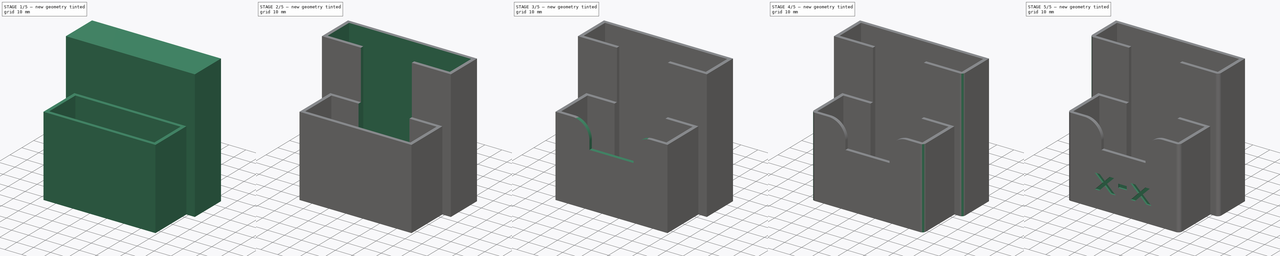
[diagram: build sequence overview — one tinted view per stage of 5, left to right]
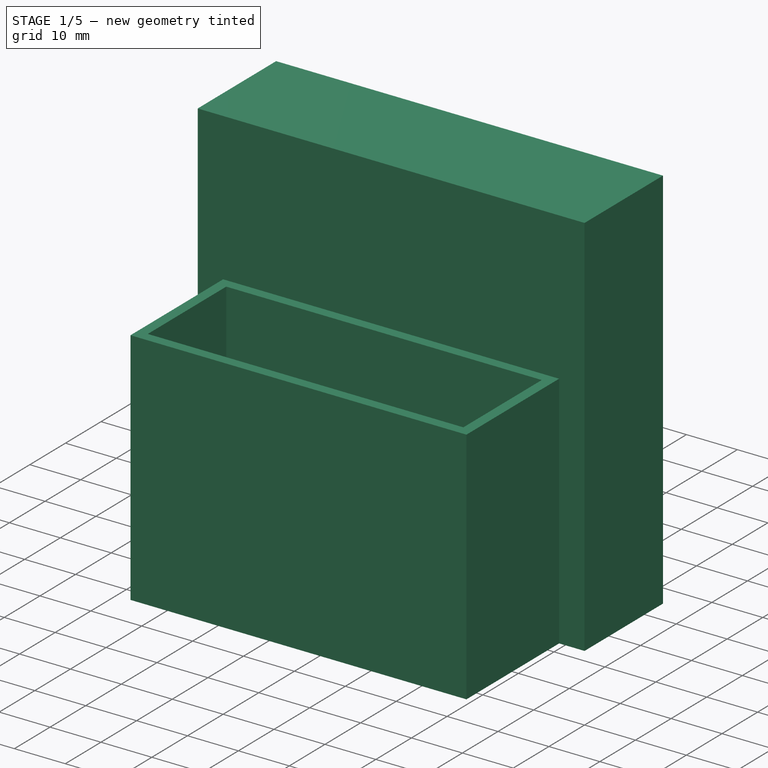
[diagram: stage 1 of 5 — iso view after this stage's code; geometry added in this stage tinted green]
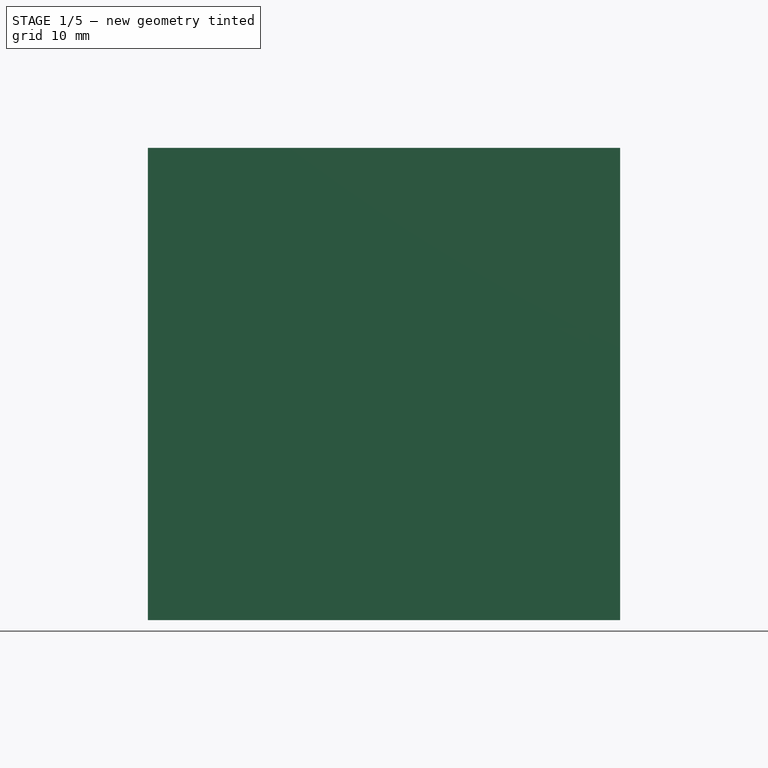
[diagram: stage 1 of 5 — front view after this stage's code; geometry added in this stage tinted green]
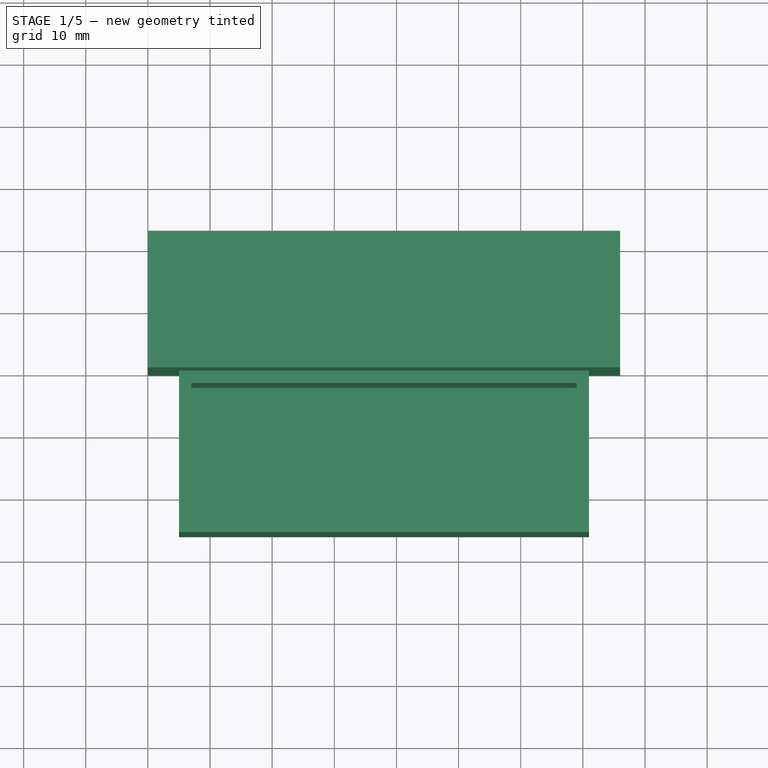
[diagram: stage 1 of 5 — top view after this stage's code; geometry added in this stage tinted green]
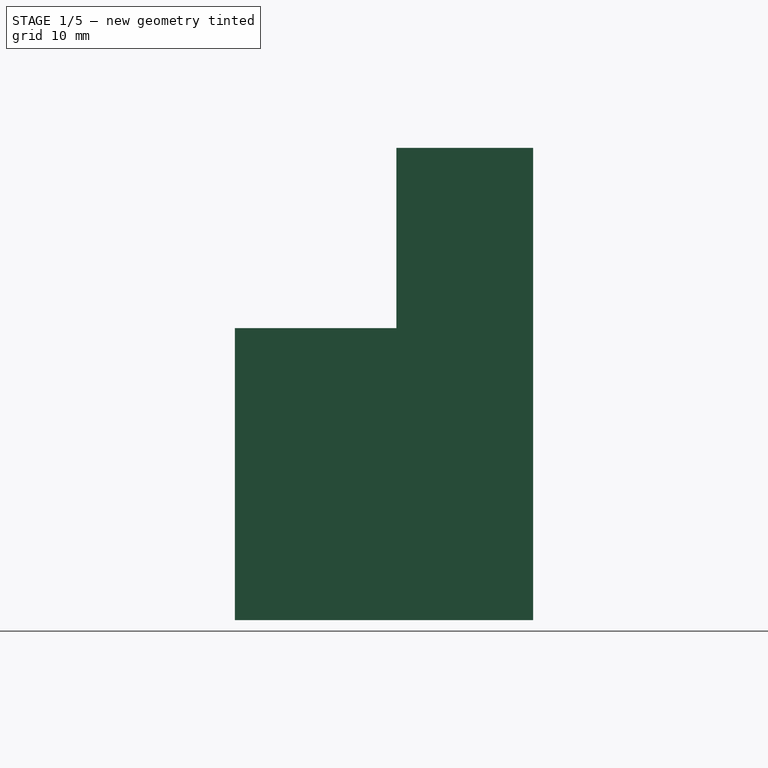
[diagram: stage 1 of 5 — right view after this stage's code; geometry added in this stage tinted green]
FCSTD DOCUMENT  (FreeCAD 0.19R24267 +148 (Git))
Label: TpLinkAutoPowered_7
License: All rights reserved
LicenseURL: http://en.wikipedia.org/wiki/All_rights_reserved
objects: Sketcher::SketchObject×7, PartDesign::Pocket×7, PartDesign::Fillet×6, PartDesign::Pad×2, Part::Part2DObjectPython×2, PartDesign::Body×1
note: 40 computed .brp shape members not serialized (recipe doc carries the construction recipe); baked Part::Feature solids carry a one-line shape summary decoded from their .brp

FEATURE [Sketcher::SketchObject] Sketch
  FullyConstrained = true
  MapMode = 5
  Support = -> [XY_Plane]
  sketch-geometry (4):
    g0: LineSegment StartX=0 StartY=0 StartZ=0 EndX=76 EndY=0 EndZ=0
    g1: LineSegment StartX=76 StartY=0 StartZ=0 EndX=76 EndY=22 EndZ=0
    g2: LineSegment StartX=76 StartY=22 StartZ=0 EndX=0 EndY=22 EndZ=0
    g3: LineSegment StartX=0 StartY=22 StartZ=0 EndX=0 EndY=0 EndZ=0
  constraints (11):
    c: Coincident(g0,g1)
    c: Coincident(g1,g2)
    c: Coincident(g2,g3)
    c: Coincident(g3,g0)
    c: Horizontal(g0)
    c: Horizontal(g2)
    c: Vertical(g1)
    c: Vertical(g3)
    c: Coincident(g0,g-1)
    c: Distance(g1) = 22
    c: Distance(g2) = 76
FEATURE [PartDesign::Pad] Pad  label="BlocPowerBank"
  Direction = (1,1,1)
  Length = 76
  Length2 = 100
  Profile = -> Sketch
  Type = 0
FEATURE [Sketcher::SketchObject] Sketch001
  FullyConstrained = true
  MapMode = 5
  Support = -> [XY_Plane]
  sketch-geometry (4):
    g0: LineSegment StartX=71 StartY=0 StartZ=0 EndX=5 EndY=0 EndZ=0
    g1: LineSegment StartX=5 StartY=0 StartZ=0 EndX=5 EndY=-26 EndZ=0
    g2: LineSegment StartX=5 StartY=-26 StartZ=0 EndX=71 EndY=-26 EndZ=0
    g3: LineSegment StartX=71 StartY=-26 StartZ=0 EndX=71 EndY=0 EndZ=0
  constraints (12):
    c: Coincident(g0,g1)
    c: Coincident(g1,g2)
    c: Coincident(g2,g3)
    c: Coincident(g3,g0)
    c: Horizontal(g0)
    c: Horizontal(g2)
    c: Vertical(g1)
    c: Vertical(g3)
    c: PointOnObject(g0,g-1)
    c: Distance(g-1,g1) = 5
    c: Distance(g3) = 26
    c: Distance(g2) = 66
FEATURE [PartDesign::Pad] Pad001  label="BlocTpLink"
  BaseFeature = -> Pad
  Direction = (1,1,1)
  Length = 47
  Length2 = 100
  Profile = -> Sketch001
  Type = 0
FEATURE [Sketcher::SketchObject] Sketch002
  FullyConstrained = true
  MapMode = 5
  Placement = pos=(0,0,47) rot=(0,0,1;0rad)
  Support = -> [Pad001]
  sketch-geometry (4):
    g0: LineSegment StartX=7 StartY=-2 StartZ=0 EndX=69 EndY=-2 EndZ=0
    g1: LineSegment StartX=69 StartY=-2 StartZ=0 EndX=69 EndY=-24 EndZ=0
    g2: LineSegment StartX=69 StartY=-24 StartZ=0 EndX=7 EndY=-24 EndZ=0
    g3: LineSegment StartX=7 StartY=-24 StartZ=0 EndX=7 EndY=-2 EndZ=0
  constraints (12):
    c: Coincident(g0,g1)
    c: Coincident(g1,g2)
    c: Coincident(g2,g3)
    c: Coincident(g3,g0)
    c: Horizontal(g0)
    c: Horizontal(g2)
    c: Vertical(g1)
    c: Vertical(g3)
    c: Distance(g3) = 22
    c: Distance(g0) = 62
    c: Distance(g-1,g3) = 7
    c: Distance(g-1,g0) = 2
FEATURE [PartDesign::Pocket] Pocket  label="HoleTpLink"
  BaseFeature = -> Pad001
  Length = 45
  Length2 = 100
  Profile = -> Sketch002
  Type = 0
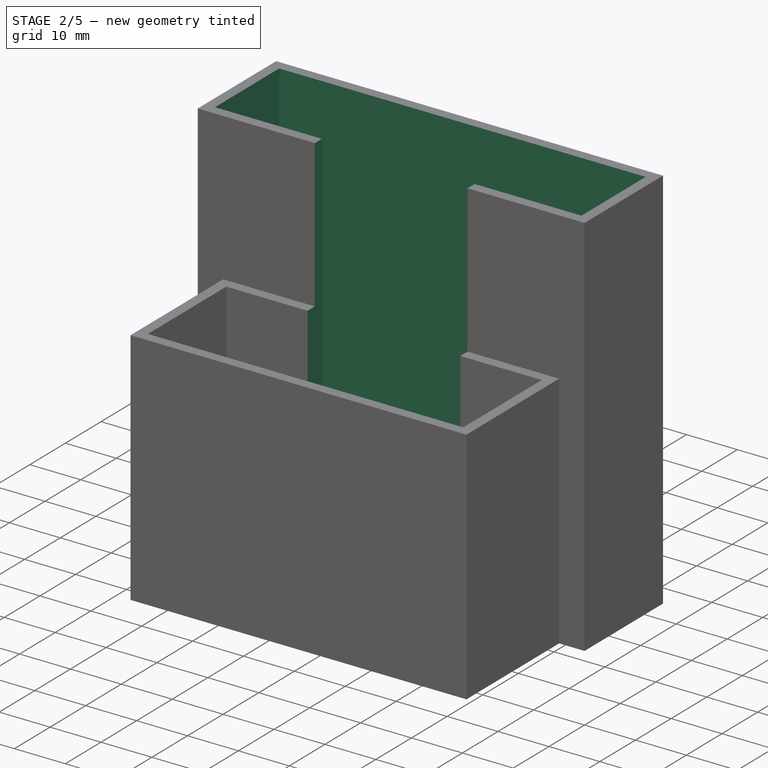
[diagram: stage 2 of 5 — iso view after this stage's code; geometry added in this stage tinted green]
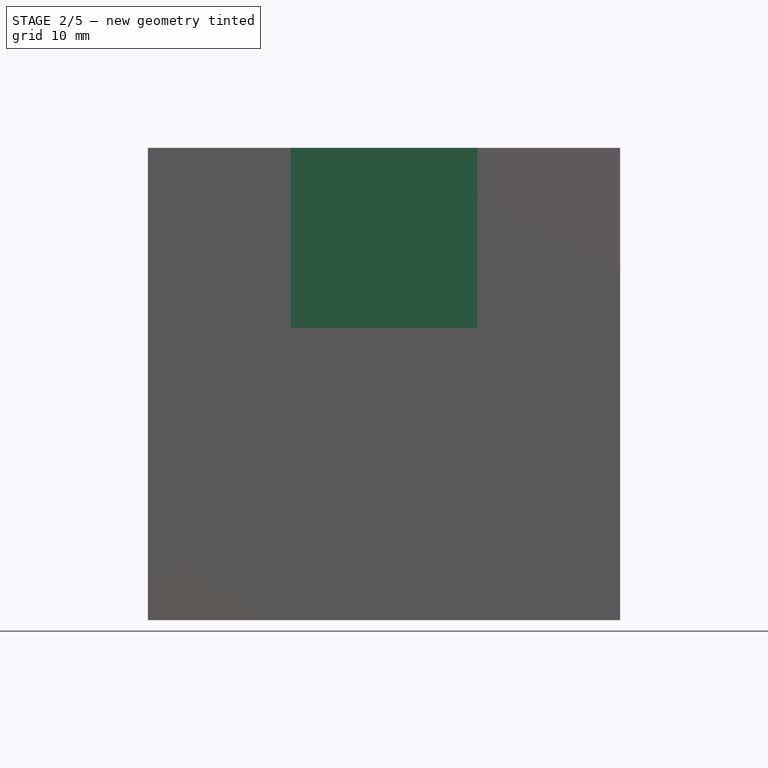
[diagram: stage 2 of 5 — front view after this stage's code; geometry added in this stage tinted green]
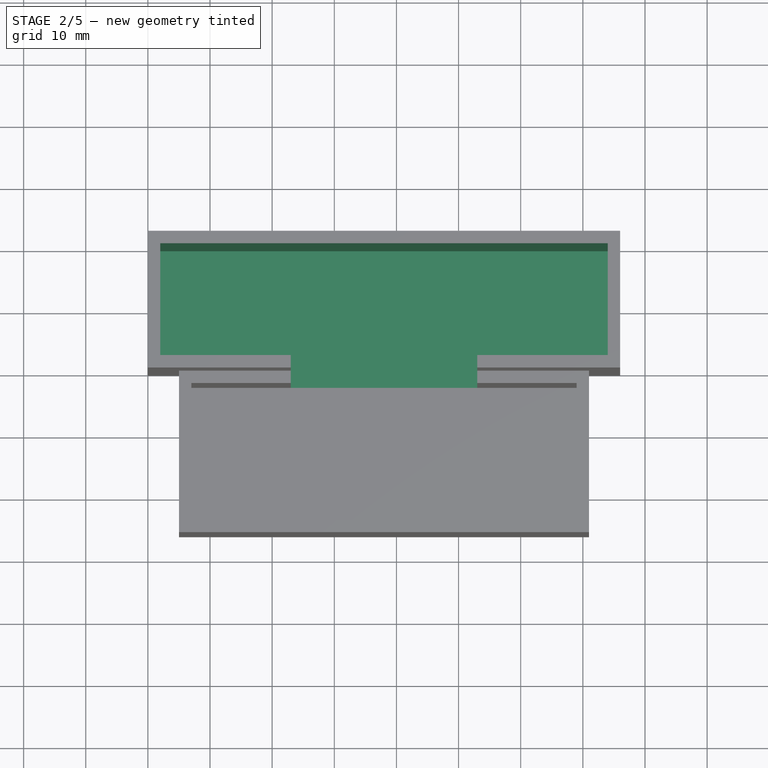
[diagram: stage 2 of 5 — top view after this stage's code; geometry added in this stage tinted green]
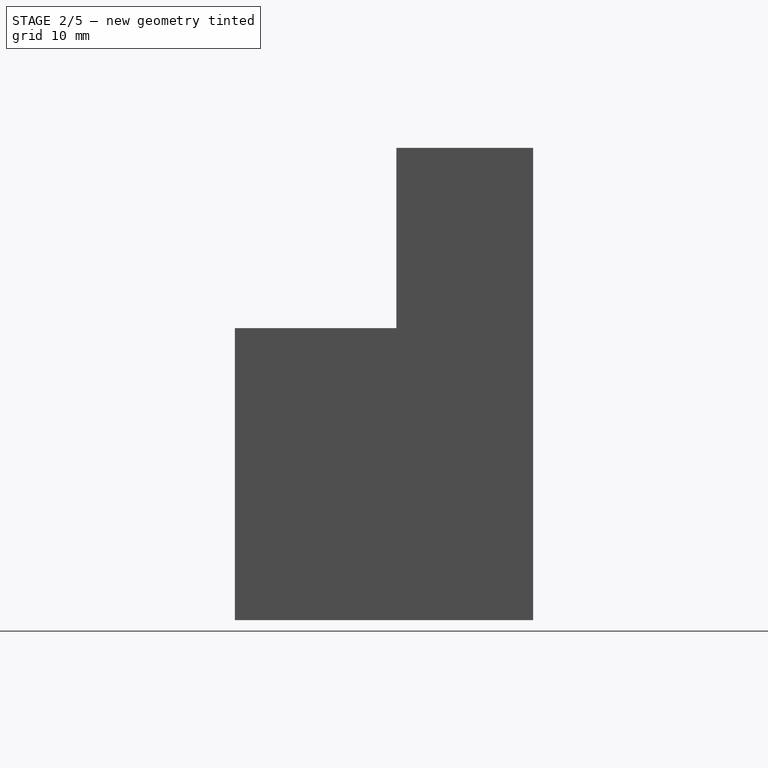
[diagram: stage 2 of 5 — right view after this stage's code; geometry added in this stage tinted green]
FEATURE [Sketcher::SketchObject] Sketch003
  FullyConstrained = true
  MapMode = 5
  Placement = pos=(0,0,76) rot=(0,0,1;0rad)
  Support = -> [Pocket]
  sketch-geometry (4):
    g0: LineSegment StartX=2 StartY=20 StartZ=0 EndX=74 EndY=20 EndZ=0
    g1: LineSegment StartX=74 StartY=20 StartZ=0 EndX=74 EndY=2 EndZ=0
    g2: LineSegment StartX=74 StartY=2 StartZ=0 EndX=2 EndY=2 EndZ=0
    g3: LineSegment StartX=2 StartY=2 StartZ=0 EndX=2 EndY=20 EndZ=0
  constraints (12):
    c: Coincident(g0,g1)
    c: Coincident(g1,g2)
    c: Coincident(g2,g3)
    c: Coincident(g3,g0)
    c: Horizontal(g0)
    c: Horizontal(g2)
    c: Vertical(g1)
    c: Vertical(g3)
    c: Distance(g0) = 72
    c: Distance(g1) = 18
    c: Distance(g-1,g3) = 2
    c: Distance(g-1,g2) = 2
FEATURE [PartDesign::Pocket] Pocket001
  BaseFeature = -> Pocket
  Length = 74
  Length2 = 100
  Profile = -> Sketch003
  Type = 0
FEATURE [Sketcher::SketchObject] Sketch004
  FullyConstrained = true
  MapMode = 5
  Placement = pos=(0,0,47) rot=(0,0,1;0rad)
  Support = -> [Pocket001]
  sketch-geometry (4):
    g0: LineSegment StartX=23 StartY=0 StartZ=0 EndX=53 EndY=0 EndZ=0
    g1: LineSegment StartX=53 StartY=0 StartZ=0 EndX=53 EndY=-2 EndZ=0
    g2: LineSegment StartX=53 StartY=-2 StartZ=0 EndX=23 EndY=-2 EndZ=0
    g3: LineSegment StartX=23 StartY=-2 StartZ=0 EndX=23 EndY=0 EndZ=0
  constraints (12):
    c: Coincident(g0,g1)
    c: Coincident(g1,g2)
    c: Coincident(g2,g3)
    c: Coincident(g3,g0)
    c: Horizontal(g0)
    c: Horizontal(g2)
    c: Vertical(g1)
    c: Vertical(g3)
    c: PointOnObject(g0,g-1)
    c: Distance(g1) = 2
    c: Distance(g-1,g3) = 23
    c: Distance(g2) = 30
FEATURE [PartDesign::Pocket] Pocket002
  BaseFeature = -> Pocket001
  Length = 45
  Length2 = 100
  Profile = -> Sketch004
  Type = 0
FEATURE [Sketcher::SketchObject] Sketch005
  FullyConstrained = true
  MapMode = 5
  Placement = pos=(0,0,76) rot=(0,0,1;0rad)
  Support = -> [Pocket002]
  sketch-geometry (4):
    g0: LineSegment StartX=23 StartY=0 StartZ=0 EndX=53 EndY=0 EndZ=0
    g1: LineSegment StartX=53 StartY=0 StartZ=0 EndX=53 EndY=2 EndZ=0
    g2: LineSegment StartX=53 StartY=2 StartZ=0 EndX=23 EndY=2 EndZ=0
    g3: LineSegment StartX=23 StartY=2 StartZ=0 EndX=23 EndY=0 EndZ=0
  constraints (12):
    c: Coincident(g0,g1)
    c: Coincident(g1,g2)
    c: Coincident(g2,g3)
    c: Coincident(g3,g0)
    c: Horizontal(g0)
    c: Horizontal(g2)
    c: Vertical(g1)
    c: Vertical(g3)
    c: PointOnObject(g0,g-1)
    c: Distance(g2) = 30
    c: Distance(g1) = 2
    c: Distance(g-1,g3) = 23
FEATURE [PartDesign::Pocket] Pocket003
  BaseFeature = -> Pocket002
  Length = 74
  Length2 = 100
  Profile = -> Sketch005
  Type = 0
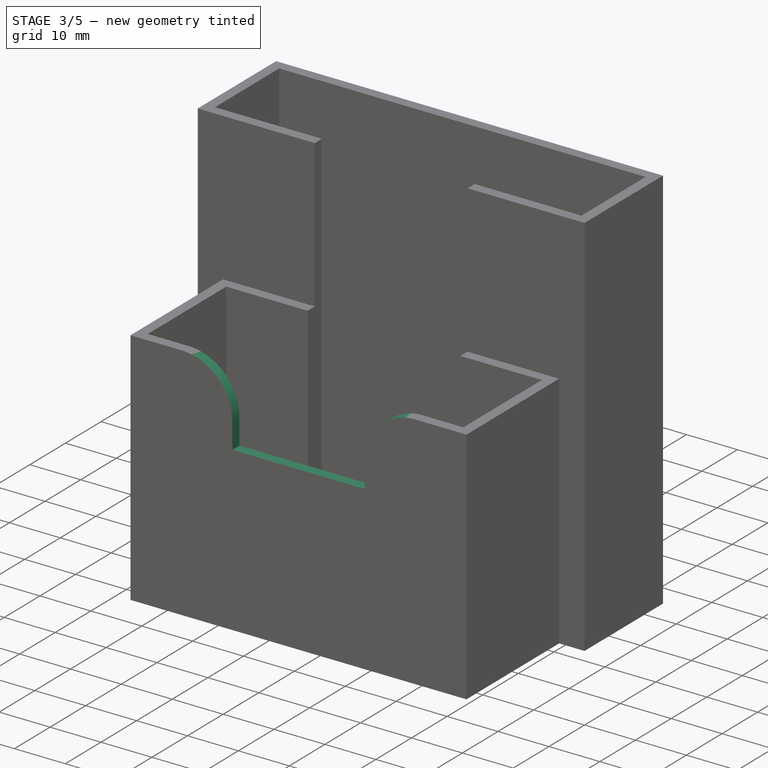
[diagram: stage 3 of 5 — iso view after this stage's code; geometry added in this stage tinted green]
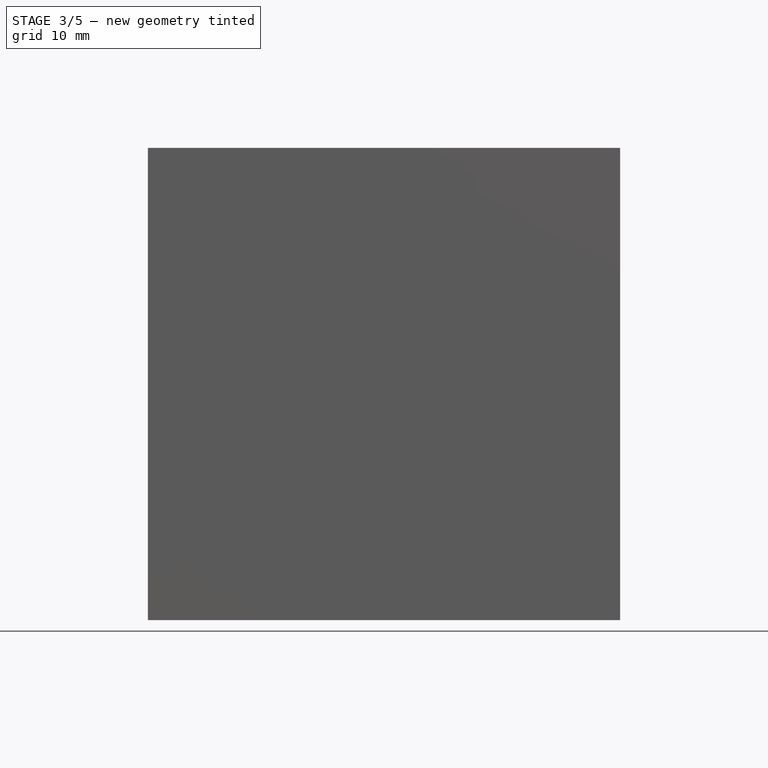
[diagram: stage 3 of 5 — front view after this stage's code; geometry added in this stage tinted green]
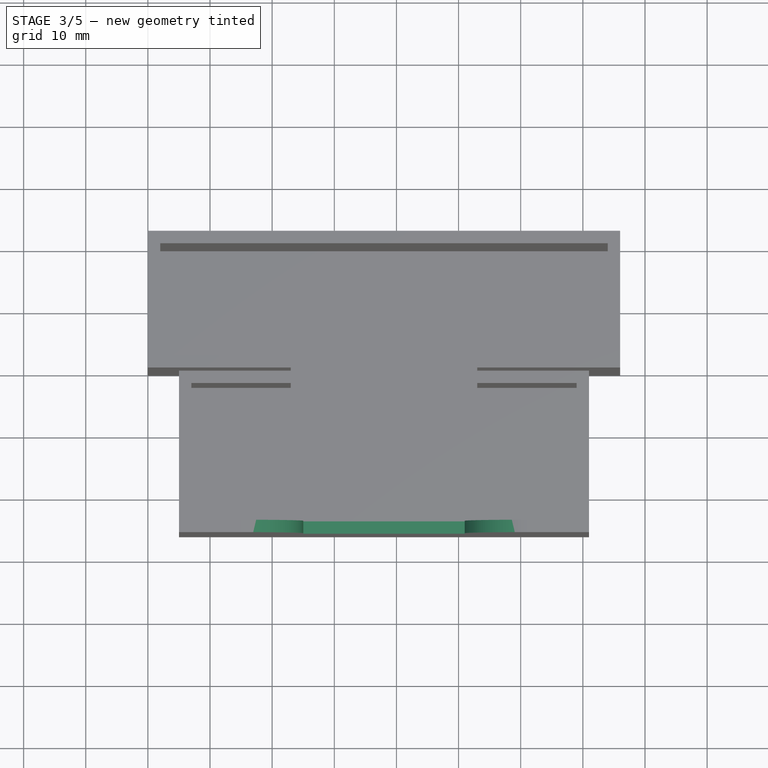
[diagram: stage 3 of 5 — top view after this stage's code; geometry added in this stage tinted green]
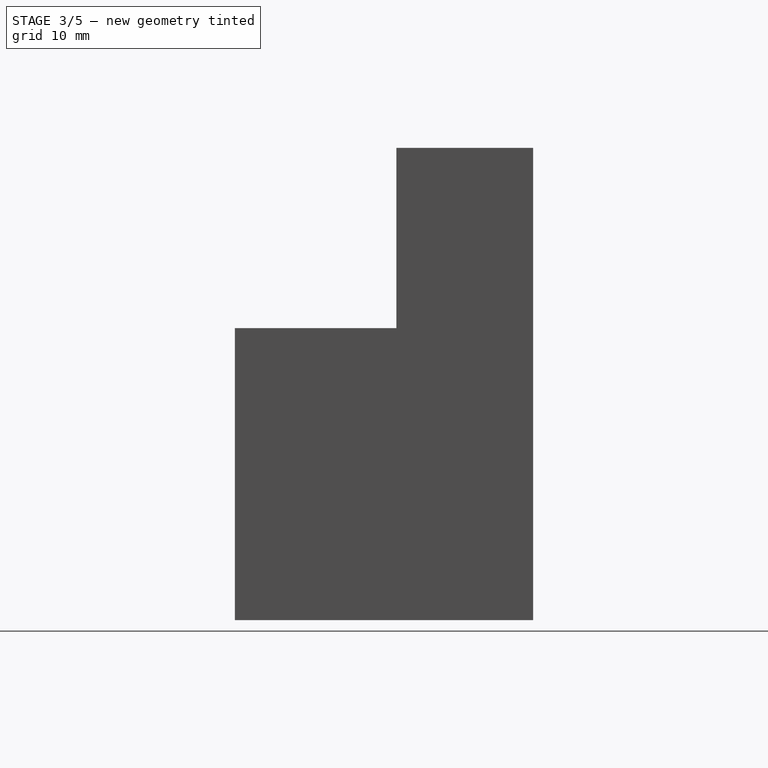
[diagram: stage 3 of 5 — right view after this stage's code; geometry added in this stage tinted green]
FEATURE [Sketcher::SketchObject] Sketch006
  FullyConstrained = true
  MapMode = 5
  Placement = pos=(0,0,47) rot=(0,0,1;0rad)
  Support = -> [Pocket003]
  sketch-geometry (4):
    g0: LineSegment StartX=25 StartY=-26 StartZ=0 EndX=51 EndY=-26 EndZ=0
    g1: LineSegment StartX=51 StartY=-26 StartZ=0 EndX=51 EndY=-24 EndZ=0
    g2: LineSegment StartX=51 StartY=-24 StartZ=0 EndX=25 EndY=-24 EndZ=0
    g3: LineSegment StartX=25 StartY=-24 StartZ=0 EndX=25 EndY=-26 EndZ=0
  constraints (12):
    c: Coincident(g0,g1)
    c: Coincident(g1,g2)
    c: Coincident(g2,g3)
    c: Coincident(g3,g0)
    c: Horizontal(g0)
    c: Horizontal(g2)
    c: Vertical(g1)
    c: Vertical(g3)
    c: Distance(g1) = 2
    c: Distance(g0) = 26
    c: Distance(g-1,g3) = 25
    c: Distance(g-1,g2) = 24
FEATURE [PartDesign::Pocket] Pocket004
  BaseFeature = -> Pocket003
  Length = 15
  Length2 = 100
  Profile = -> Sketch006
  Type = 0
FEATURE [PartDesign::Fillet] Fillet
  Base = -> Pocket004 [Edge76]
  BaseFeature = -> Pocket004
  Radius = 10
  SupportTransform = false
FEATURE [PartDesign::Fillet] Fillet001
  Base = -> Fillet [Edge30]
  BaseFeature = -> Fillet
  Radius = 10
  SupportTransform = false
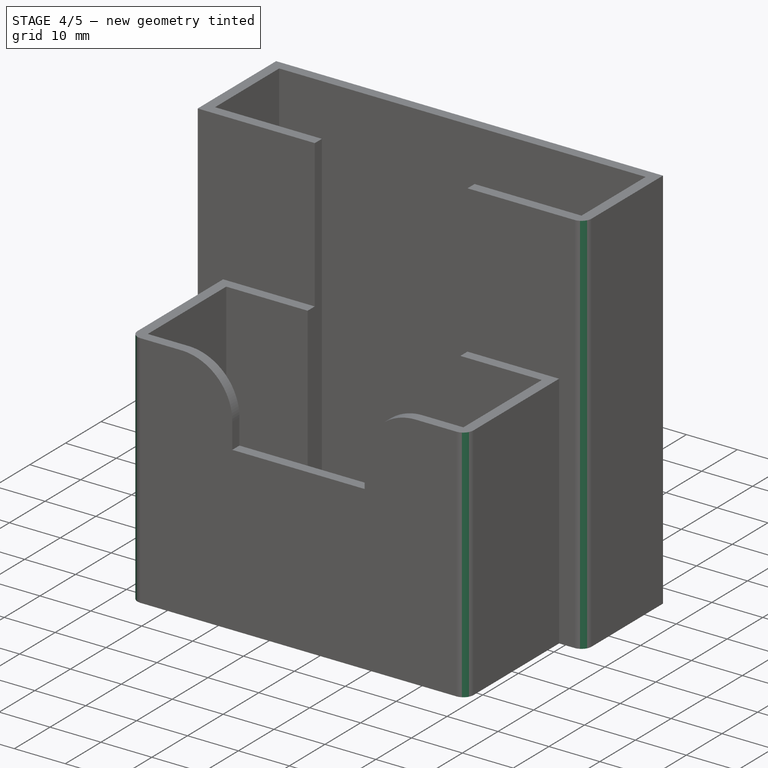
[diagram: stage 4 of 5 — iso view after this stage's code; geometry added in this stage tinted green]
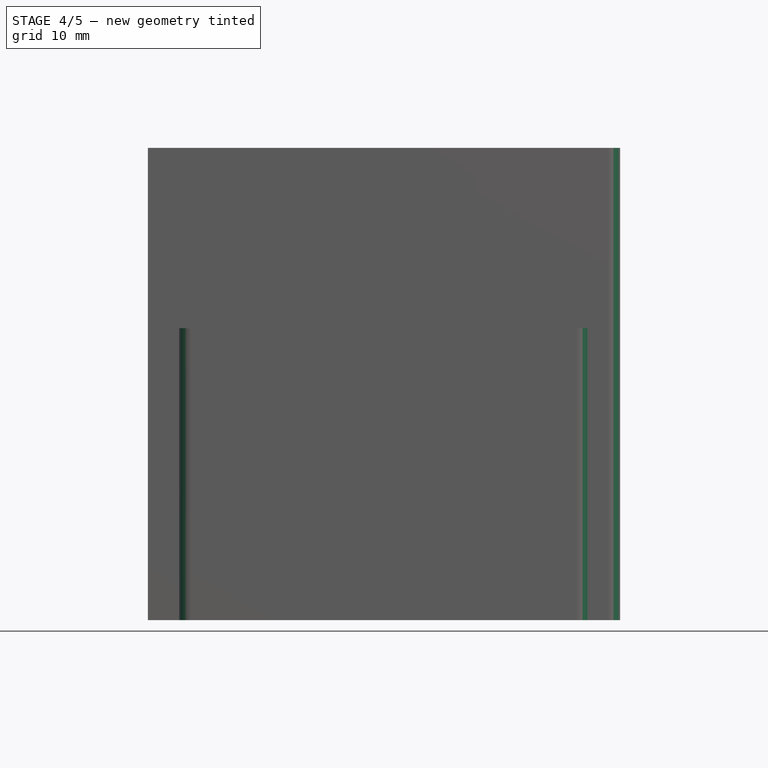
[diagram: stage 4 of 5 — front view after this stage's code; geometry added in this stage tinted green]
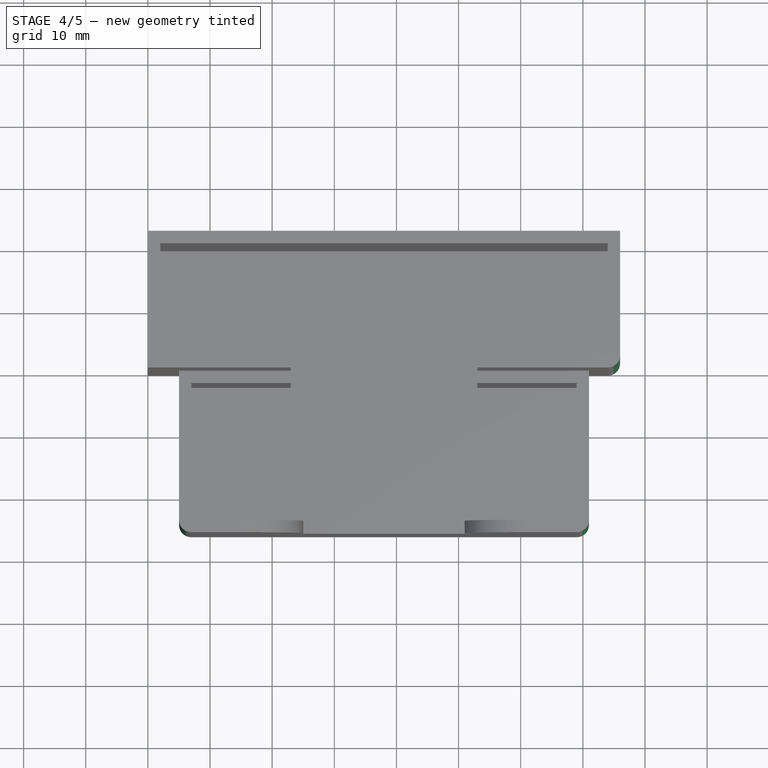
[diagram: stage 4 of 5 — top view after this stage's code; geometry added in this stage tinted green]
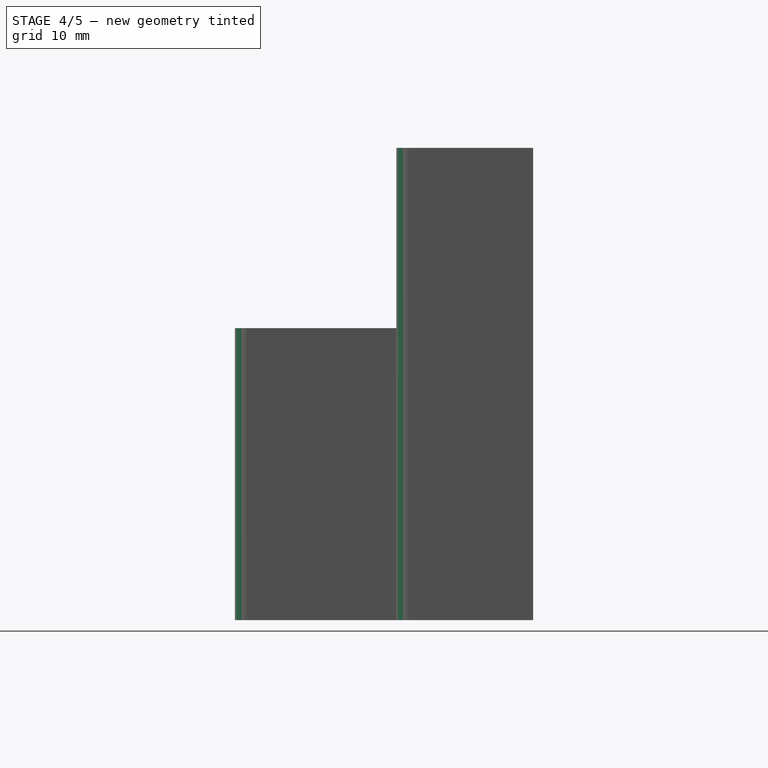
[diagram: stage 4 of 5 — right view after this stage's code; geometry added in this stage tinted green]
FEATURE [PartDesign::Fillet] Fillet002
  Base = -> Fillet001 [Edge6]
  BaseFeature = -> Fillet001
  Radius = 2
  SupportTransform = false
FEATURE [PartDesign::Fillet] Fillet003
  Base = -> Fillet002 [Edge6]
  BaseFeature = -> Fillet002
  Radius = 2
  SupportTransform = false
FEATURE [PartDesign::Fillet] Fillet004
  Base = -> Fillet003 [Edge54]
  BaseFeature = -> Fillet003
  Radius = 2
  SupportTransform = false
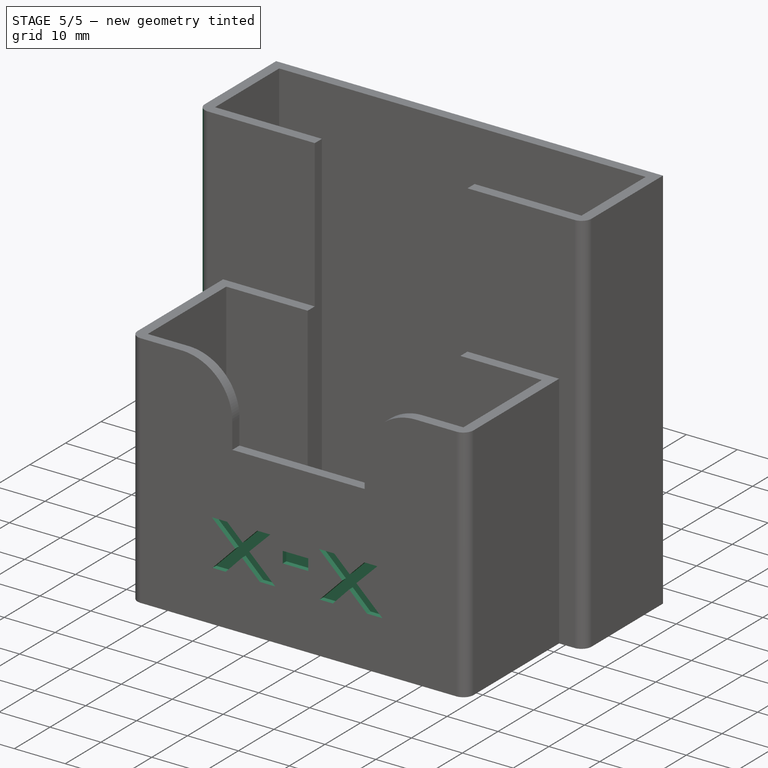
[diagram: stage 5 of 5 — iso view after this stage's code; geometry added in this stage tinted green]
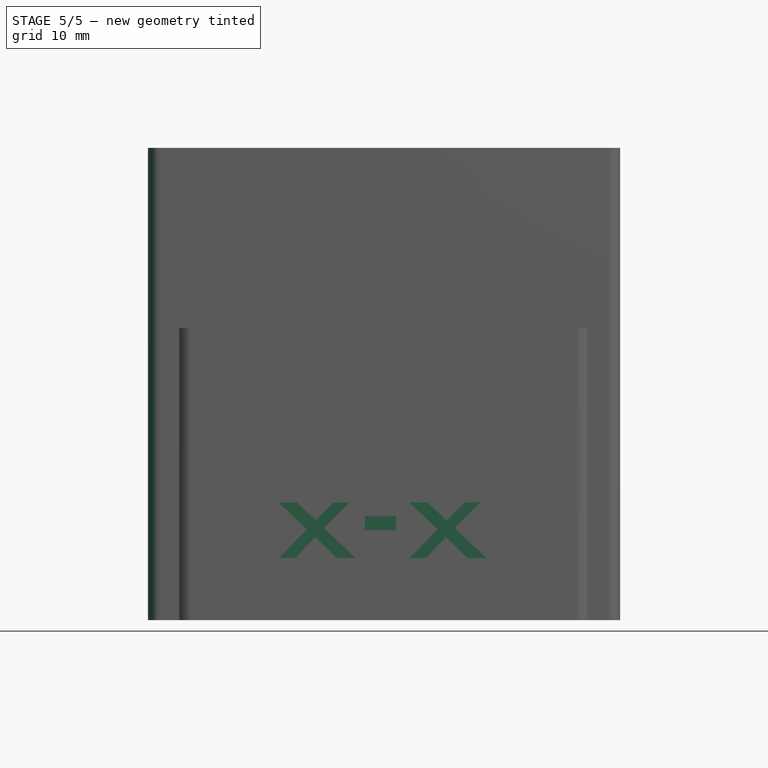
[diagram: stage 5 of 5 — front view after this stage's code; geometry added in this stage tinted green]
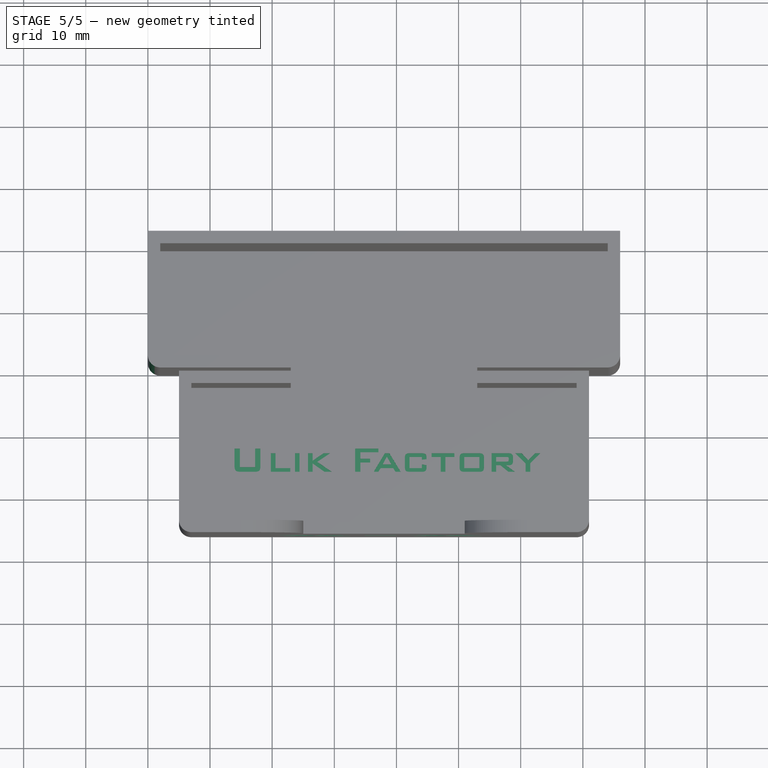
[diagram: stage 5 of 5 — top view after this stage's code; geometry added in this stage tinted green]
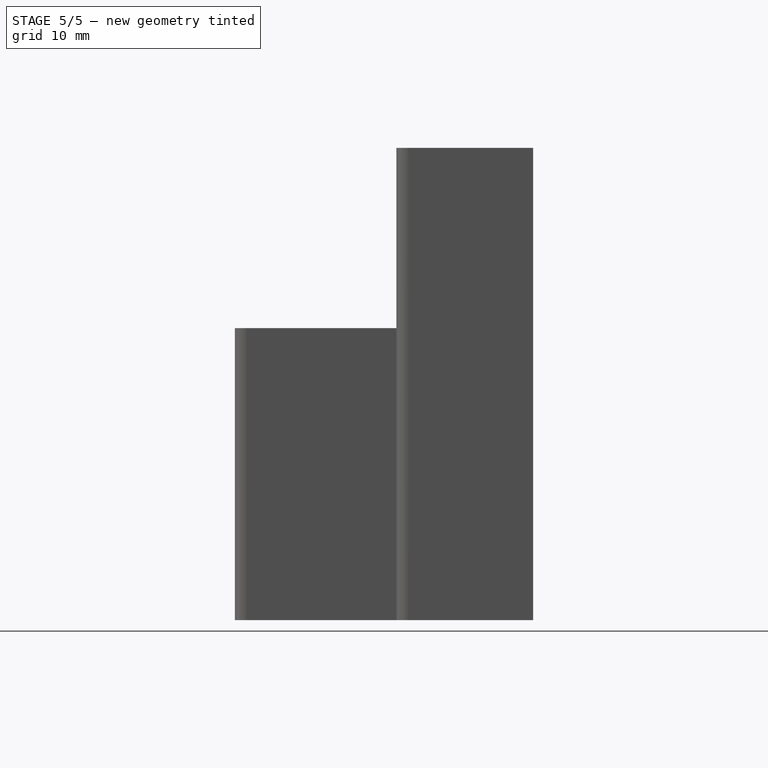
[diagram: stage 5 of 5 — right view after this stage's code; geometry added in this stage tinted green]
FEATURE [PartDesign::Fillet] Fillet005
  Base = -> Fillet004 [Edge26]
  BaseFeature = -> Fillet004
  Radius = 2
  SupportTransform = false
FEATURE [Part::Part2DObjectPython] ShapeString  # Draft 2D object (typed FeaturePython)
  FontFile = <userpath>/Desktop/SupportTpLinkAutonome/Model3/bgothm.ttf
  Placement = pos=(20,-26,10) rot=(1,0,0;1.5708rad)
  Size = 15
  String = x-x
  Tracking = 0
FEATURE [PartDesign::Pocket] Pocket005
  BaseFeature = -> Fillet005
  Length = 1
  Length2 = 100
  Profile = -> ShapeString
  Type = 0
FEATURE [Part::Part2DObjectPython] ShapeString001  # Draft 2D object (typed FeaturePython)
  FontFile = <userpath>/Desktop/SupportTpLinkAutonome/Model3/bgothm.ttf
  Placement = pos=(13,-15.5,2) rot=(0,0,1;0rad)
  Size = 5
  String = Ulik Factory
  Tracking = 0
FEATURE [PartDesign::Pocket] Pocket006
  BaseFeature = -> Pocket005
  Length = 1
  Length2 = 100
  Profile = -> ShapeString001
  Type = 0
FEATURE [PartDesign::Body] Body
  Group = -> [Sketch,Pad,Sketch001,Pad001,Sketch002,Pocket,Sketch003,Pocket001,Sketch004,Pocket002,Sketch005,Pocket003,Sketch006,Pocket004,Fillet,Fillet001,Fillet002,Fillet003,Fillet004,Fillet005,ShapeString,Pocket005,ShapeString001,Pocket006]
  Origin = -> Origin
  Tip = -> Pocket006
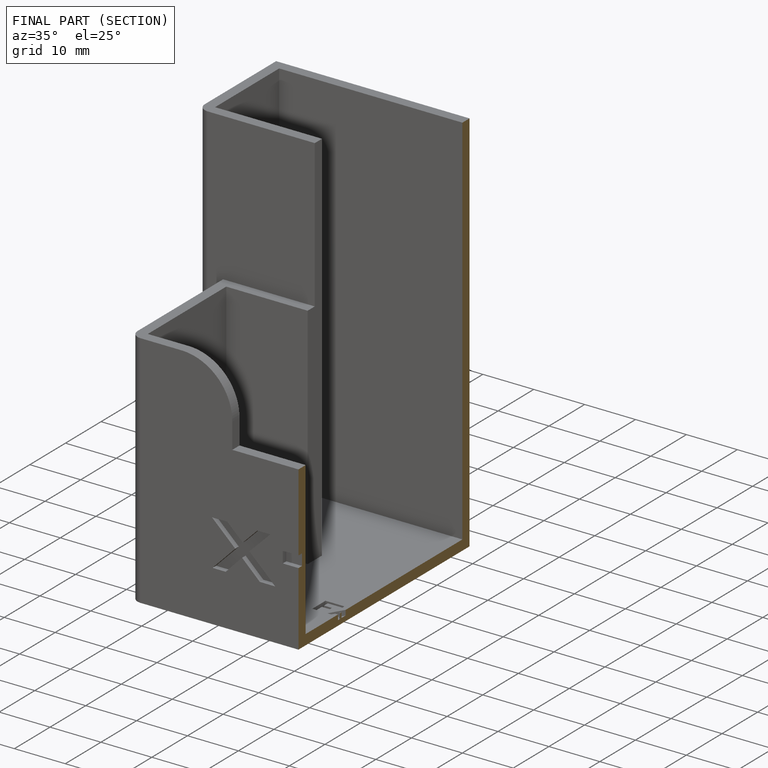
[diagram: finished part — half-section view (interior)]
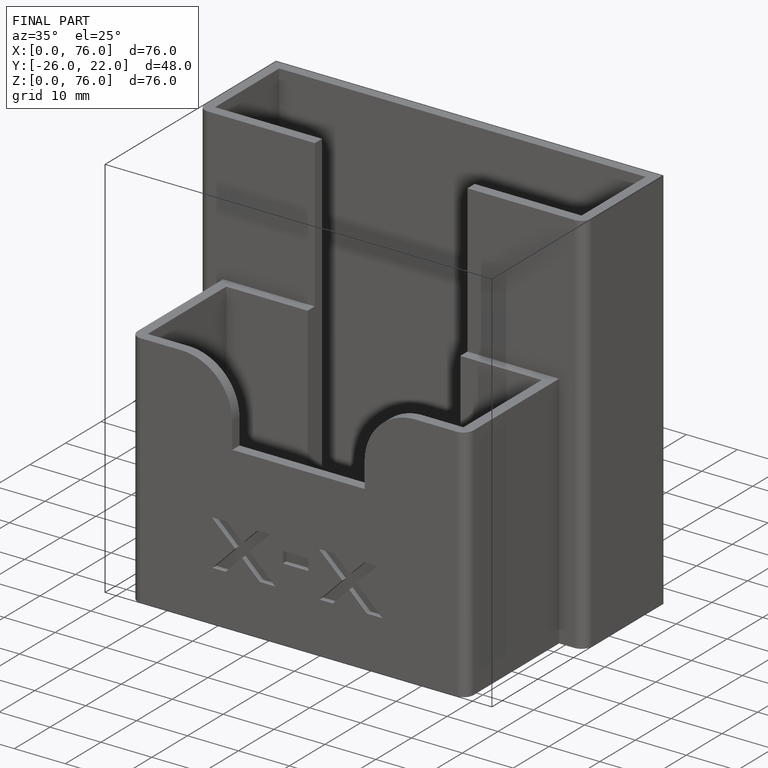
[diagram: finished part — iso view with bounding-box wireframe]
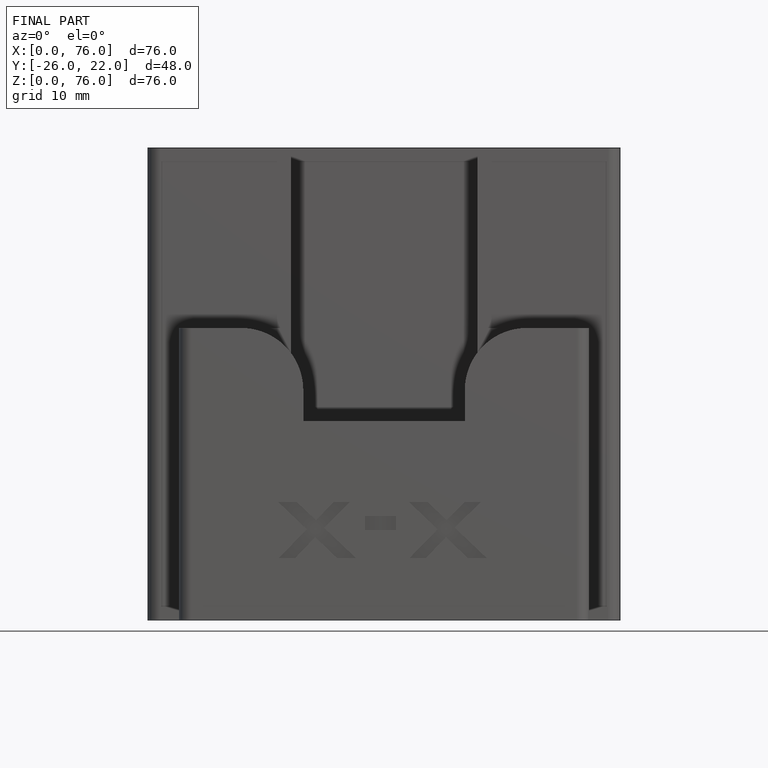
[diagram: finished part — front view with bounding-box wireframe]
